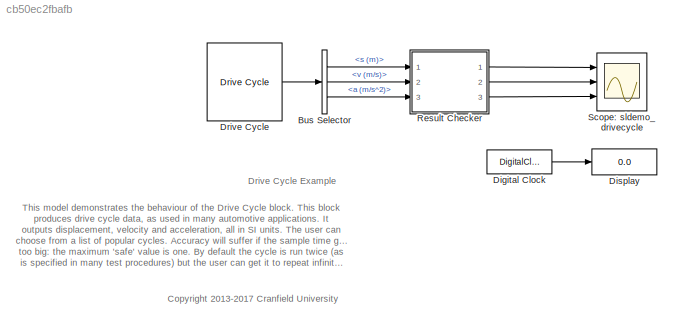
MODEL slx_cb50ec2fbafb
KIND model
CONFIG AbsTol = auto
CONFIG FixedStep = auto
CONFIG MaxStep = 1
CONFIG MinStep = auto
CONFIG RelTol = 1e-3
CONFIG SampleTimeConstraint = Unconstrained
CONFIG Solver = ode45
CONFIG SolverMode = Auto
CONFIG SolverName = ode45
CONFIG StartTime = 0.0
CONFIG StopTime = 1e5
BLOCK [BusSelector] Bus Selector
  OutputSignals = s (m),v (m/s),a (m/s^2)
  Ports = [1, 3]
BLOCK [DigitalClock] Digital Clock
BLOCK [Display] Display
  Decimation = 1
  Ports = [1]
BLOCK [Reference] Drive Cycle  REF=drivecyclelib/Drive Cycle  (lib defined in slx_81b896a7d342, slx_ea48a560381a)
  Ports = [0, 1]
  SourceBlock = drivecyclelib/Drive Cycle
  SourceType = Drive Cycle
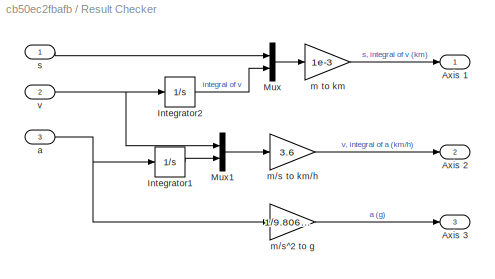
BLOCK [SubSystem] Result Checker
  Ports = [3, 3]
  RequestExecContextInheritance = off
  Variant = off
BLOCK [Outport] Result Checker/Axis 1
  IconDisplay = Port number
BLOCK [Outport] Result Checker/Axis 2
  IconDisplay = Port number
  Port = 2
BLOCK [Outport] Result Checker/Axis 3
  IconDisplay = Port number
  Port = 3
BLOCK [Integrator] Result Checker/Integrator1
  Ports = [1, 1]
BLOCK [Integrator] Result Checker/Integrator2
  Ports = [1, 1]
BLOCK [Mux] Result Checker/Mux
  DisplayOption = bar
  Inputs = 2
  Ports = [2, 1]
BLOCK [Mux] Result Checker/Mux1
  DisplayOption = bar
  Inputs = 2
  Ports = [2, 1]
BLOCK [Inport] Result Checker/a
  IconDisplay = Port number
  Port = 3
BLOCK [Gain] Result Checker/m to km
  Gain = 1e-3
  OutDataTypeStr = Inherit: Inherit via internal rule
  ParamDataTypeStr = Inherit: Inherit via internal rule
  SaturateOnIntegerOverflow = off
BLOCK [Gain] Result Checker/m//s to km//h
  Gain = 3.6
  OutDataTypeStr = Inherit: Inherit via internal rule
  ParamDataTypeStr = Inherit: Inherit via internal rule
  SaturateOnIntegerOverflow = off
BLOCK [Gain] Result Checker/m//s^2 to g
  Gain = 1/9.80665
  OutDataTypeStr = Inherit: Inherit via internal rule
  ParamDataTypeStr = Inherit: Inherit via internal rule
  SaturateOnIntegerOverflow = off
BLOCK [Inport] Result Checker/s
  IconDisplay = Port number
BLOCK [Inport] Result Checker/v
  IconDisplay = Port number
  Port = 2
BLOCK [Scope] Scope: sldemo_drivecycle
  NumInputPorts = 3
  Ports = [3]
  ScopeSpecificationString = Simulink.scopes.TimeScopeBlockCfg('CurrentConfiguration', extmgr.ConfigurationSet(extmgr.Configuration('Core','General UI',true,'FigureColor',[0.156862745098039 0.156862745098039 0.156862745098039]),extmgr.Configuration('Core','Source UI',true),extmgr.Configuration('Sources','WiredSimulink',true,'DataLoggingVariableName','ScopeData2','DataLoggingSaveFormat','StructureWithTime','DataLoggingDecimati...<+5349ch>
ANNOTATION (root): <copyright redacted>
ANNOTATION (root): Drive Cycle Example
ANNOTATION (root): This model demonstrates the behaviour of the Drive Cycle block. This block produces drive cycle data, as used in many automotive applications. It outputs displacement, velocity and acceleration, all in SI units. The user can choose from a list of popular cycles. Accuracy will suffer if the sample time gets too big: the maximum 'safe' value is one. By default the cycle is run twice (as is specified...<+71ch>
LINE Bus Selector:1 -> Result Checker:1
LINE Bus Selector:2 -> Result Checker:2
LINE Bus Selector:3 -> Result Checker:3
LINE Digital Clock:1 -> Display:1
LINE Drive Cycle:1 -> Bus Selector:1
LINE Result Checker/Integrator1:1 -> Result Checker/Mux1:2
LINE Result Checker/Integrator2:1 -> Result Checker/Mux:2
LINE Result Checker/Mux1:1 -> Result Checker/m//s to km//h:1
LINE Result Checker/Mux:1 -> Result Checker/m to km:1
NET Result Checker/a:1 -> Result Checker/Integrator1:1, Result Checker/m//s^2 to g:1
LINE Result Checker/m to km:1 -> Result Checker/Axis 1:1
LINE Result Checker/m//s to km//h:1 -> Result Checker/Axis 2:1
LINE Result Checker/m//s^2 to g:1 -> Result Checker/Axis 3:1
LINE Result Checker/s:1 -> Result Checker/Mux:1
NET Result Checker/v:1 -> Result Checker/Integrator2:1, Result Checker/Mux1:1
LINE Result Checker:1 -> Scope: sldemo_drivecycle:1
LINE Result Checker:2 -> Scope: sldemo_drivecycle:2
LINE Result Checker:3 -> Scope: sldemo_drivecycle:3
note: NET lines group one-source signal fan-out (src -> all destinations, sorted); 1:1 wires keep LINE
